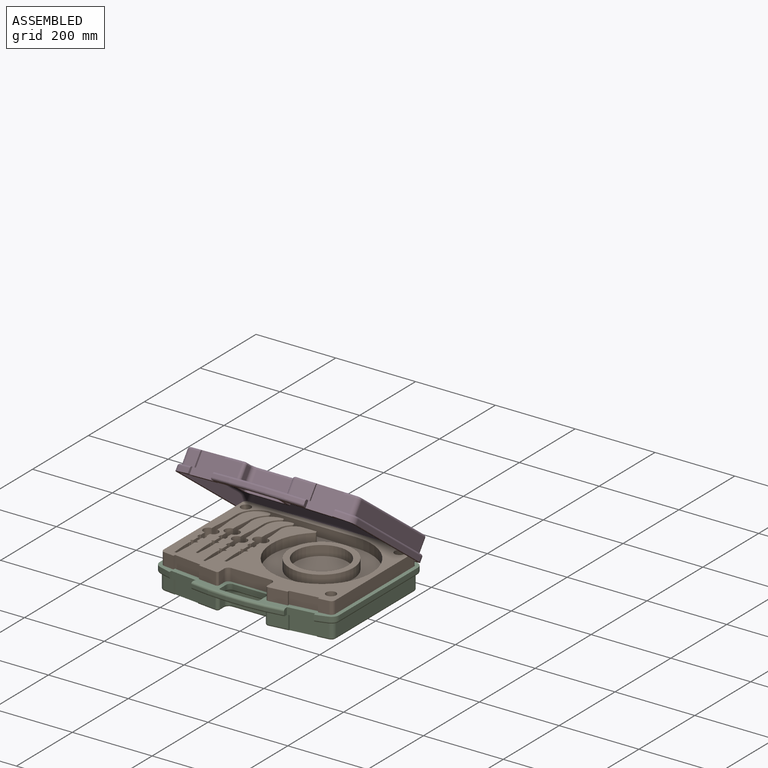
[diagram: assembled view]
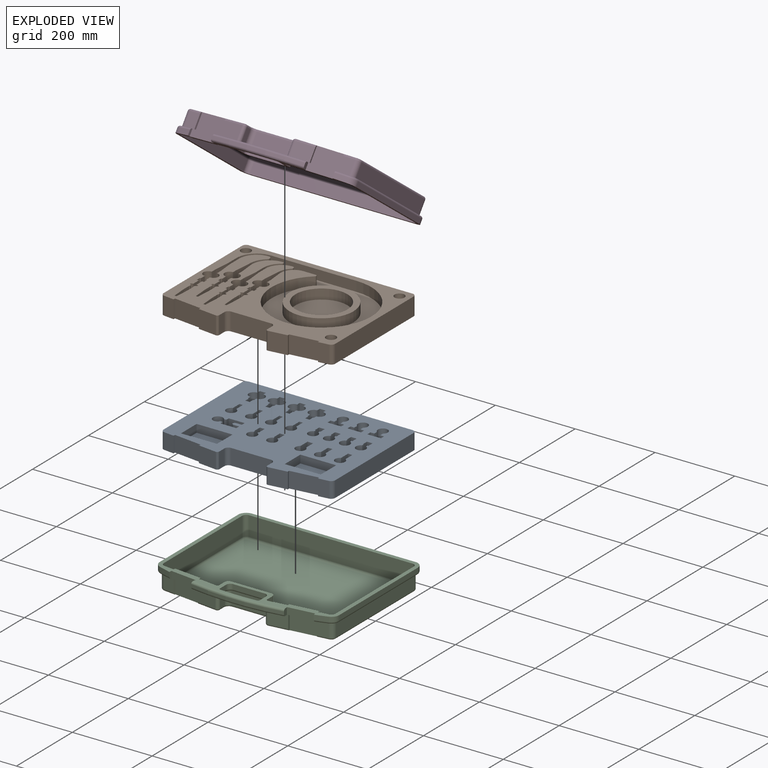
[diagram: exploded view]
GUIDED TOUR — MATED ASSEMBLY (Onshape document 5773a241e4b045660ab29a93, AutoMate assembly 5773a241e4b045660ab29a93_c4ba2a1c1ad19d531c4332f6_9940934c67d2c280661d5257_default)

This assembly has 4 components, labeled P0..P3 below (a component is one placed occurrence of a part; the same part can appear more than once), held together by 3 mates. A mate is a constraint between two components; its type names the relative motion it leaves free:
  REVOLUTE — leaves rotation about the listed axis free (a hinge),
  SLIDER — leaves translation along the listed axis free.
Axis/direction vectors are unit vectors and 'through' points are millimeter coordinates, both in the assembly's world frame.

MATES
  1. SLIDER "bottom plate": P0 <-> P2, axis (0.000, 0.000, -1.000) through (379.71, -196.88, 65.75) mm
  2. REVOLUTE "Revolute 1": P2 <-> P3, axis (-1.000, 0.000, 0.000) through (379.71, -35.58, 119.75) mm
  3. SLIDER "top plate": P1 <-> P2, axis (0.000, 0.000, -1.000) through (379.71, -196.88, 105.75) mm

ASSEMBLY ORDER
  1. P2 — the base component [order heuristic]
  2. P0 — core [order heuristic]
  3. P1 [order verified]
  4. P3 [order verified]
Order-tag legend:
  [order verified] — this step's position reverses a verified removal order: the component was checked to insert without passing through the ones already placed.
  [order heuristic] — the first 2 components form the assembly's core: parts whose collision-free extraction could not be verified, listed in mate-graph order.

Of the 4 components, 2 carry the full construction recipe — the FeatureScript program that regenerates the part's solid from scratch; the rest are supplied as boundary geometry only.
Each toured component is shown spotlighted twice — in the assembled view, then in the exploded view, where a leader line traces a displaced component back to its assembled socket (saturated green if recipe-attached, orange if geometry-only; every other component desaturated gray) — followed by its recipe or geometry summary and the mates that hold it.
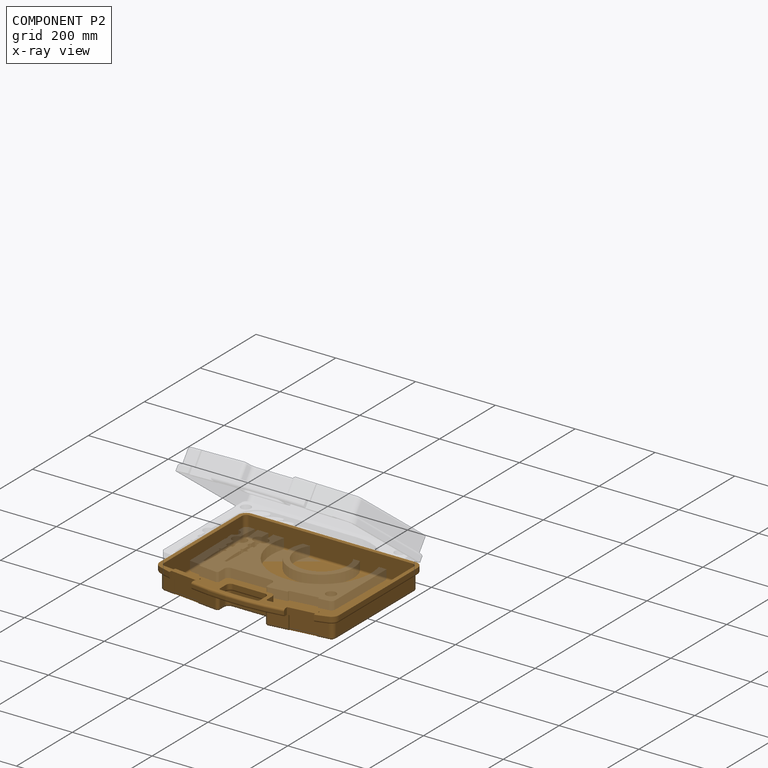
[diagram: component P2 — x-ray view]
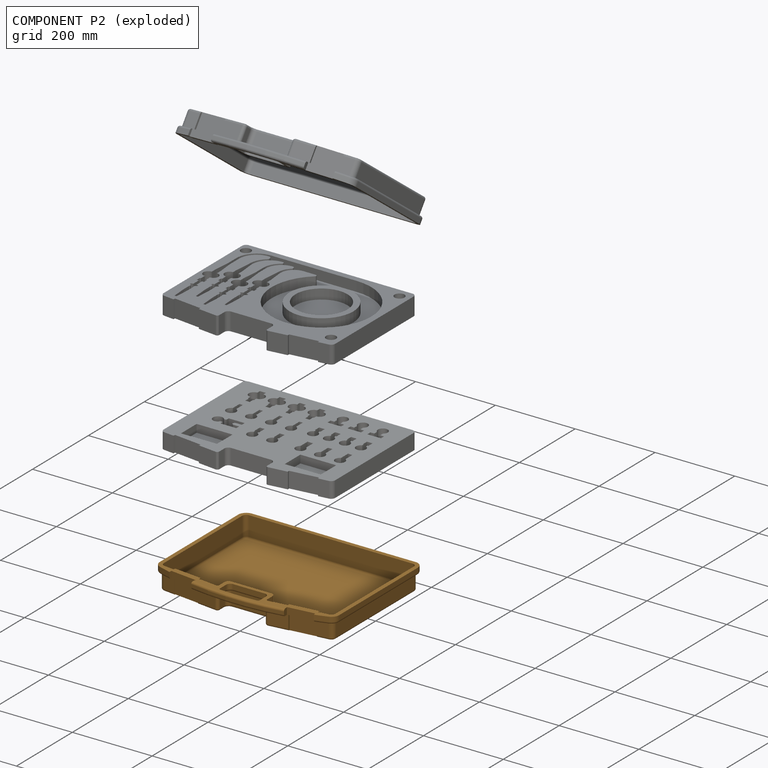
[diagram: component P2 — exploded]
COMPONENT P2 — geometry summary (no construction recipe available for this part):
  bounding box: 453.3 x 365.8 x 57.0 mm
  B-rep topology: 1 solid, 131 faces, 648 edges
  volume: 820835 mm^3 (9% of its bounding box)
  symmetry: mirror-symmetric across its x mid-plane
Held by: SLIDER mate "bottom plate" to P0; REVOLUTE mate "Revolute 1" to P3; SLIDER mate "top plate" to P1.
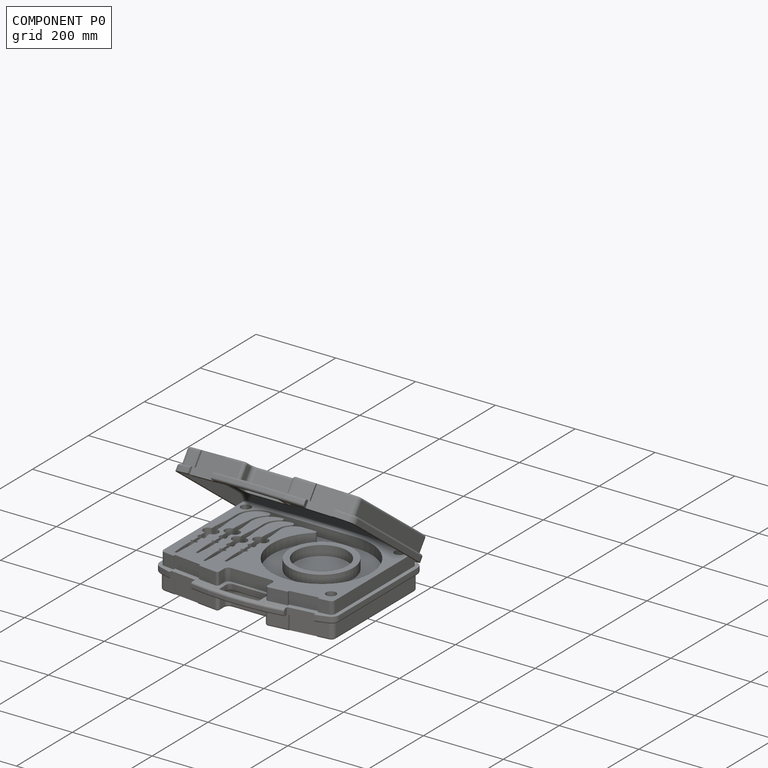
[diagram: component P0 — assembled]
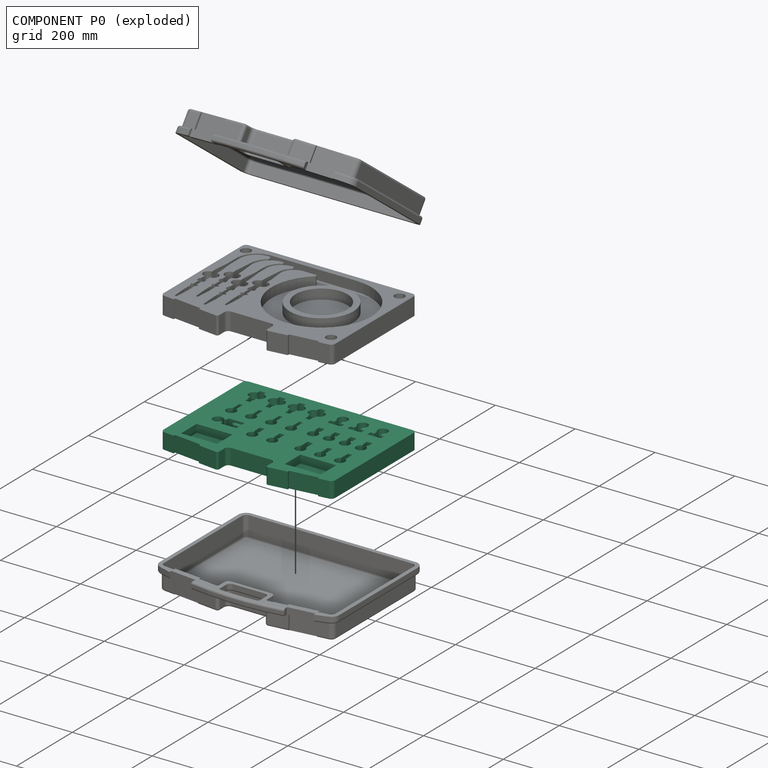
[diagram: component P0 — exploded]
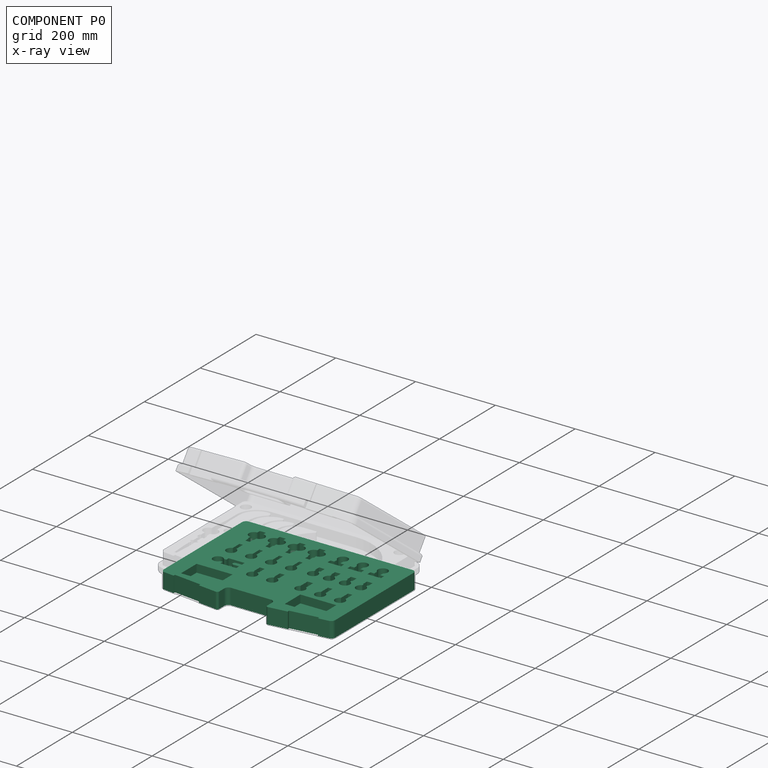
[diagram: component P0 — x-ray view]
COMPONENT P0 — recipe-attached (CADFS 00187195, mesh-verified: the recipe's output STEP matches this component's geometry to below the mesh-comparison resolution (tessellation chordal tolerance ~0.805 mm)).
Held by: SLIDER mate "bottom plate" to P2.
Construction recipe (FeatureScript — the CAD program that rebuilds this solid; sketch coordinates are in the units given by the * unit suffixes, e.g. mm):

FeatureScript 1540;
import(path : "onshape/std/geometry.fs", version : "1540.0");
import(path : "onshape/std/common.fs", version : "1540.0");
const mm = millimeter;
const VERTEX = EntityType.VERTEX;
const EDGE = EntityType.EDGE;
const FACE = EntityType.FACE;
const BODY = EntityType.BODY;
function v(x, y){return vector(x, y);}
function OD(order){return orderDisambiguation(order);}
function OSD(set){return originalSetDisambiguation(set);}
function TD(topology){return topologyDisambiguation(topology);}
function TDD(query){return trueDependencyDisambiguation(query);}
function sQuery(a, b, c) {return sketchEntityQuery(a, b, c);}

annotation { "Feature Type Name" : "Feature", "Feature Type Description" : "" }
export const myFeature = defineFeature(function(context is Context, id is Id, definition is map)
    precondition{}
    {
        {
            var Q0;
            Q0=qCreatedBy(makeId("Top.planeOp"),FACE);
            var sketch = newSketch(context, id + "F0", { "sketchPlane" : qUnion([Q0])});
            skLineSegment(sketch, "E0.bottom", {"start": v(10, 0) * mm, "end": v(420, 0) * mm});
            skLineSegment(sketch, "E1.top", {"start": v(165, 285) * mm, "end": v(265, 285) * mm});
            skLineSegment(sketch, "E1.left", {"start": v(155, 313.35) * mm, "end": v(155, 295) * mm});
            skLineSegment(sketch, "E1.right", {"start": v(275, 313.35) * mm, "end": v(275, 295) * mm});
            skLineSegment(sketch, "E2", {"start": v(0, 10) * mm, "end": v(0, 291.15) * mm});
            skLineSegment(sketch, "E3", {"start": v(430, 10) * mm, "end": v(430, 291.15) * mm});
            skLineSegment(sketch, "E4", {"start": v(33.9, 304.16) * mm, "end": v(34.51, 299.2) * mm});
            skLineSegment(sketch, "E5", {"start": v(34.51, 299.2) * mm, "end": v(104, 307.71) * mm});
            skLineSegment(sketch, "E6", {"start": v(104, 307.71) * mm, "end": v(103.39, 312.67) * mm});
            skLineSegment(sketch, "E7", {"start": v(326.61, 312.67) * mm, "end": v(326, 307.71) * mm});
            skLineSegment(sketch, "E8", {"start": v(326, 307.71) * mm, "end": v(395.49, 299.2) * mm});
            skLineSegment(sketch, "E9", {"start": v(395.49, 299.2) * mm, "end": v(396.1, 304.16) * mm});
            skLineSegment(sketch, "E10", {"start": v(396.1, 304.16) * mm, "end": v(421.22, 301.08) * mm});
            skLineSegment(sketch, "E11", {"start": v(326.61, 312.67) * mm, "end": v(280.6, 318.31) * mm});
            skLineSegment(sketch, "E12", {"start": v(103.39, 312.67) * mm, "end": v(149.4, 318.31) * mm});
            skLineSegment(sketch, "E13", {"start": v(8.78, 301.08) * mm, "end": v(33.9, 304.16) * mm});
            skPoint(sketch, "E14.visualSharp", {"position": v(155, 285) * mm});
            skArc(sketch, "E14.filletArc", {"start": v(155, 295) * mm, "mid": v(157.93, 287.93) * mm, "end": v(165, 285) * mm});
            skPoint(sketch, "E15.visualSharp", {"position": v(275, 285) * mm});
            skArc(sketch, "E15.filletArc", {"start": v(265, 285) * mm, "mid": v(272.07, 287.93) * mm, "end": v(275, 295) * mm});
            skPoint(sketch, "E16.visualSharp", {"position": v(430, 300) * mm});
            skArc(sketch, "E16.filletArc", {"start": v(430, 291.15) * mm, "mid": v(427.49, 297.78) * mm, "end": v(421.22, 301.08) * mm});
            skPoint(sketch, "E17.visualSharp", {"position": v(0, 300) * mm});
            skArc(sketch, "E17.filletArc", {"start": v(8.78, 301.08) * mm, "mid": v(2.51, 297.78) * mm, "end": v(0, 291.15) * mm});
            skPoint(sketch, "E18.visualSharp", {"position": v(0, 0) * mm});
            skArc(sketch, "E18.filletArc", {"start": v(0, 10) * mm, "mid": v(2.93, 2.93) * mm, "end": v(10, 0) * mm});
            skPoint(sketch, "E19.visualSharp", {"position": v(430, 0) * mm});
            skArc(sketch, "E19.filletArc", {"start": v(420, 0) * mm, "mid": v(427.07, 2.93) * mm, "end": v(430, 10) * mm});
            skPoint(sketch, "E20.visualSharp", {"position": v(155, 319) * mm});
            skArc(sketch, "E20.filletArc", {"start": v(155, 313.35) * mm, "mid": v(153.31, 317.1) * mm, "end": v(149.4, 318.31) * mm});
            skPoint(sketch, "E21.visualSharp", {"position": v(275, 319) * mm});
            skArc(sketch, "E21.filletArc", {"start": v(280.6, 318.31) * mm, "mid": v(276.69, 317.1) * mm, "end": v(275, 313.35) * mm});
            skLineSegment(sketch, "E22.bottom", {"start": v(40, 59) * mm, "end": v(49.5, 59) * mm});
            skLineSegment(sketch, "E22.top", {"start": v(40, 70) * mm, "end": v(74, 70) * mm});
            skLineSegment(sketch, "E22.left", {"start": v(40, 59) * mm, "end": v(40, 70) * mm});
            skLineSegment(sketch, "E22.right", {"start": v(74, 59) * mm, "end": v(74, 70) * mm});
            skLineSegment(sketch, "E23.left", {"start": v(49.5, 59) * mm, "end": v(49.5, 49) * mm});
            skLineSegment(sketch, "E23.right", {"start": v(64.5, 59) * mm, "end": v(64.5, 49) * mm});
            skLineSegment(sketch, "E24", {"start": v(57, 70) * mm, "end": v(57, 26.5) * mm, "construction": true});
            skLineSegment(sketch, "E25.trimOffspring", {"start": v(64.5, 59) * mm, "end": v(74, 59) * mm});
            skArc(sketch, "E26", {"start": v(49.5, 49) * mm, "mid": v(57, 26.5) * mm, "end": v(64.5, 49) * mm});
            skLineSegment(sketch, "E27.1.0.0", {"start": v(90, 59) * mm, "end": v(99.5, 59) * mm});
            skLineSegment(sketch, "E27.1.0.1", {"start": v(90, 70) * mm, "end": v(124, 70) * mm});
            skLineSegment(sketch, "E27.1.0.2", {"start": v(90, 59) * mm, "end": v(90, 70) * mm});
            skLineSegment(sketch, "E27.1.0.3", {"start": v(124, 59) * mm, "end": v(124, 70) * mm});
            skLineSegment(sketch, "E27.1.0.4", {"start": v(99.5, 59) * mm, "end": v(99.5, 49) * mm});
            skLineSegment(sketch, "E27.1.0.5", {"start": v(114.5, 59) * mm, "end": v(114.5, 49) * mm});
            skLineSegment(sketch, "E27.1.0.6", {"start": v(107, 70) * mm, "end": v(107, 26.5) * mm, "construction": true});
            skLineSegment(sketch, "E27.1.0.7", {"start": v(114.5, 59) * mm, "end": v(124, 59) * mm});
            skArc(sketch, "E27.1.0.8", {"start": v(99.5, 49) * mm, "mid": v(107, 26.5) * mm, "end": v(114.5, 49) * mm});
            skLineSegment(sketch, "E27.2.0.0", {"start": v(140, 59) * mm, "end": v(149.5, 59) * mm});
            skLineSegment(sketch, "E27.2.0.1", {"start": v(140, 70) * mm, "end": v(174, 70) * mm});
            skLineSegment(sketch, "E27.2.0.2", {"start": v(140, 59) * mm, "end": v(140, 70) * mm});
            skLineSegment(sketch, "E27.2.0.3", {"start": v(174, 59) * mm, "end": v(174, 70) * mm});
            skLineSegment(sketch, "E27.2.0.4", {"start": v(149.5, 59) * mm, "end": v(149.5, 49) * mm});
            skLineSegment(sketch, "E27.2.0.5", {"start": v(164.5, 59) * mm, "end": v(164.5, 49) * mm});
            skLineSegment(sketch, "E27.2.0.6", {"start": v(157, 70) * mm, "end": v(157, 26.5) * mm, "construction": true});
            skLineSegment(sketch, "E27.2.0.7", {"start": v(164.5, 59) * mm, "end": v(174, 59) * mm});
            skArc(sketch, "E27.2.0.8", {"start": v(149.5, 49) * mm, "mid": v(157, 26.5) * mm, "end": v(164.5, 49) * mm});
            skLineSegment(sketch, "E27.direction1", {"start": v(57, 26.5) * mm, "end": v(107, 26.5) * mm, "construction": true});
            skLineSegment(sketch, "E28", {"start": v(351.5, 170) * mm, "end": v(311.5, 170) * mm});
            skLineSegment(sketch, "E29", {"start": v(311.5, 170) * mm, "end": v(311.5, 180) * mm});
            skLineSegment(sketch, "E30", {"start": v(311.5, 180) * mm, "end": v(325.8, 180) * mm});
            skLineSegment(sketch, "E31", {"start": v(325.8, 190) * mm, "end": v(311.5, 190) * mm});
            skLineSegment(sketch, "E32", {"start": v(311.5, 190) * mm, "end": v(311.5, 200) * mm});
            skLineSegment(sketch, "E33", {"start": v(311.5, 200) * mm, "end": v(351.5, 200) * mm});
            skLineSegment(sketch, "E34", {"start": v(351.5, 200) * mm, "end": v(351.5, 191.5) * mm});
            skLineSegment(sketch, "E35", {"start": v(351.5, 191.5) * mm, "end": v(357.5, 191.5) * mm});
            skLineSegment(sketch, "E36", {"start": v(357.5, 178.5) * mm, "end": v(351.5, 178.5) * mm});
            skLineSegment(sketch, "E37", {"start": v(351.5, 178.5) * mm, "end": v(351.5, 170) * mm});
            skLineSegment(sketch, "E38", {"start": v(380.68, 185) * mm, "end": v(330.8, 185) * mm, "construction": true});
            skArc(sketch, "E39", {"start": v(325.8, 180) * mm, "mid": v(330.8, 185) * mm, "end": v(325.8, 190) * mm});
            skArc(sketch, "E40", {"start": v(357.5, 178.5) * mm, "mid": v(380.68, 185) * mm, "end": v(357.5, 191.5) * mm});
            skLineSegment(sketch, "E41.bottom", {"start": v(223.5, 100) * mm, "end": v(223.5, 124) * mm});
            skLineSegment(sketch, "E41.top", {"start": v(215, 100) * mm, "end": v(215, 124) * mm});
            skLineSegment(sketch, "E41.left", {"start": v(223.5, 100) * mm, "end": v(215, 100) * mm});
            skArc(sketch, "E42", {"start": v(223.5, 124) * mm, "mid": v(219.25, 148.26) * mm, "end": v(215, 124) * mm});
            skLineSegment(sketch, "E43.1.0.0", {"start": v(273.5, 100) * mm, "end": v(265, 100) * mm});
            skArc(sketch, "E43.1.0.1", {"start": v(273.5, 124) * mm, "mid": v(269.25, 148.26) * mm, "end": v(265, 124) * mm});
            skLineSegment(sketch, "E43.1.0.2", {"start": v(265, 100) * mm, "end": v(265, 124) * mm});
            skLineSegment(sketch, "E43.1.0.3", {"start": v(273.5, 100) * mm, "end": v(273.5, 124) * mm});
            skLineSegment(sketch, "E43.2.0.0", {"start": v(323.5, 100) * mm, "end": v(315, 100) * mm});
            skArc(sketch, "E43.2.0.1", {"start": v(323.5, 124) * mm, "mid": v(319.25, 148.26) * mm, "end": v(315, 124) * mm});
            skLineSegment(sketch, "E43.2.0.2", {"start": v(315, 100) * mm, "end": v(315, 124) * mm});
            skLineSegment(sketch, "E43.2.0.3", {"start": v(323.5, 100) * mm, "end": v(323.5, 124) * mm});
            skLineSegment(sketch, "E43.3.0.0", {"start": v(373.5, 100) * mm, "end": v(365, 100) * mm});
            skArc(sketch, "E43.3.0.1", {"start": v(373.5, 124) * mm, "mid": v(369.25, 148.26) * mm, "end": v(365, 124) * mm});
            skLineSegment(sketch, "E43.3.0.2", {"start": v(365, 100) * mm, "end": v(365, 124) * mm});
            skLineSegment(sketch, "E43.3.0.3", {"start": v(373.5, 100) * mm, "end": v(373.5, 124) * mm});
            skLineSegment(sketch, "E43.direction1", {"start": v(215, 100) * mm, "end": v(265, 100) * mm, "construction": true});
            skLineSegment(sketch, "E44.bottom", {"start": v(40, 100) * mm, "end": v(54, 100) * mm});
            skLineSegment(sketch, "E44.top", {"start": v(40, 115) * mm, "end": v(42.25, 115) * mm});
            skLineSegment(sketch, "E44.left", {"start": v(40, 100) * mm, "end": v(40, 115) * mm});
            skLineSegment(sketch, "E44.right", {"start": v(54, 100) * mm, "end": v(54, 115) * mm});
            skLineSegment(sketch, "E45.left", {"start": v(42.25, 115) * mm, "end": v(42.25, 120) * mm});
            skLineSegment(sketch, "E45.right", {"start": v(51.75, 115) * mm, "end": v(51.75, 120) * mm});
            skLineSegment(sketch, "E46", {"start": v(47, 144.06) * mm, "end": v(47, 100) * mm, "construction": true});
            skArc(sketch, "E47", {"start": v(51.75, 120) * mm, "mid": v(47, 144.06) * mm, "end": v(42.25, 120) * mm});
            skLineSegment(sketch, "E48.trimOffspring", {"start": v(51.75, 115) * mm, "end": v(54, 115) * mm});
            skLineSegment(sketch, "E49.1.0.0", {"start": v(80, 100) * mm, "end": v(94, 100) * mm});
            skLineSegment(sketch, "E49.1.0.1", {"start": v(80, 115) * mm, "end": v(82.25, 115) * mm});
            skLineSegment(sketch, "E49.1.0.2", {"start": v(80, 100) * mm, "end": v(80, 115) * mm});
            skLineSegment(sketch, "E49.1.0.3", {"start": v(94, 100) * mm, "end": v(94, 115) * mm});
            skLineSegment(sketch, "E49.1.0.4", {"start": v(82.25, 115) * mm, "end": v(82.25, 120) * mm});
            skLineSegment(sketch, "E49.1.0.5", {"start": v(91.75, 115) * mm, "end": v(91.75, 120) * mm});
            skLineSegment(sketch, "E49.1.0.6", {"start": v(87, 144.06) * mm, "end": v(87, 100) * mm, "construction": true});
            skArc(sketch, "E49.1.0.7", {"start": v(91.75, 120) * mm, "mid": v(87, 144.06) * mm, "end": v(82.25, 120) * mm});
            skLineSegment(sketch, "E49.1.0.8", {"start": v(91.75, 115) * mm, "end": v(94, 115) * mm});
            skLineSegment(sketch, "E49.direction1", {"start": v(40, 100) * mm, "end": v(80, 100) * mm, "construction": true});
            skLineSegment(sketch, "E50.0.2.0", {"start": v(120, 100) * mm, "end": v(134, 100) * mm});
            skLineSegment(sketch, "E50.3.2.0", {"start": v(120, 115) * mm, "end": v(122.25, 115) * mm});
            skLineSegment(sketch, "E50.6.2.0", {"start": v(120, 100) * mm, "end": v(120, 115) * mm});
            skLineSegment(sketch, "E50.9.2.0", {"start": v(134, 100) * mm, "end": v(134, 115) * mm});
            skLineSegment(sketch, "E50.12.2.0", {"start": v(122.25, 115) * mm, "end": v(122.25, 120) * mm});
            skLineSegment(sketch, "E50.15.2.0", {"start": v(131.75, 115) * mm, "end": v(131.75, 120) * mm});
            skLineSegment(sketch, "E50.18.2.0", {"start": v(127, 144.06) * mm, "end": v(127, 100) * mm, "construction": true});
            skArc(sketch, "E50.21.2.0", {"start": v(131.75, 120) * mm, "mid": v(127, 144.06) * mm, "end": v(122.25, 120) * mm});
            skLineSegment(sketch, "E50.25.2.0", {"start": v(131.75, 115) * mm, "end": v(134, 115) * mm});
            skLineSegment(sketch, "E50.0.3.0", {"start": v(160, 100) * mm, "end": v(174, 100) * mm});
            skLineSegment(sketch, "E50.3.3.0", {"start": v(160, 115) * mm, "end": v(162.25, 115) * mm});
            skLineSegment(sketch, "E50.6.3.0", {"start": v(160, 100) * mm, "end": v(160, 115) * mm});
            skLineSegment(sketch, "E50.9.3.0", {"start": v(174, 100) * mm, "end": v(174, 115) * mm});
            skLineSegment(sketch, "E50.12.3.0", {"start": v(162.25, 115) * mm, "end": v(162.25, 120) * mm});
            skLineSegment(sketch, "E50.15.3.0", {"start": v(171.75, 115) * mm, "end": v(171.75, 120) * mm});
            skLineSegment(sketch, "E50.18.3.0", {"start": v(167, 144.06) * mm, "end": v(167, 100) * mm, "construction": true});
            skArc(sketch, "E50.21.3.0", {"start": v(171.75, 120) * mm, "mid": v(167, 144.06) * mm, "end": v(162.25, 120) * mm});
            skLineSegment(sketch, "E50.25.3.0", {"start": v(171.75, 115) * mm, "end": v(174, 115) * mm});
            skLineSegment(sketch, "E51.bottom", {"start": v(41.5, 170) * mm, "end": v(52.5, 170) * mm});
            skLineSegment(sketch, "E51.left", {"start": v(41.5, 170) * mm, "end": v(41.5, 195) * mm});
            skLineSegment(sketch, "E51.right", {"start": v(52.5, 170) * mm, "end": v(52.5, 195) * mm});
            skArc(sketch, "E52", {"start": v(52.5, 195) * mm, "mid": v(47, 218.72) * mm, "end": v(41.5, 195) * mm});
            skLineSegment(sketch, "E53", {"start": v(47, 218.72) * mm, "end": v(47, 170) * mm, "construction": true});
            skLineSegment(sketch, "E54.1.0.0", {"start": v(91.5, 170) * mm, "end": v(102.5, 170) * mm});
            skLineSegment(sketch, "E54.1.0.1", {"start": v(91.5, 170) * mm, "end": v(91.5, 195) * mm});
            skLineSegment(sketch, "E54.1.0.2", {"start": v(102.5, 170) * mm, "end": v(102.5, 195) * mm});
            skArc(sketch, "E54.1.0.3", {"start": v(102.5, 195) * mm, "mid": v(97, 218.72) * mm, "end": v(91.5, 195) * mm});
            skLineSegment(sketch, "E54.1.0.4", {"start": v(97, 218.72) * mm, "end": v(97, 170) * mm, "construction": true});
            skLineSegment(sketch, "E54.direction1", {"start": v(41.5, 170) * mm, "end": v(91.5, 170) * mm, "construction": true});
            skLineSegment(sketch, "E55.bottom", {"start": v(140, 170) * mm, "end": v(154, 170) * mm});
            skLineSegment(sketch, "E55.left", {"start": v(140, 170) * mm, "end": v(140, 195) * mm});
            skLineSegment(sketch, "E55.right", {"start": v(154, 170) * mm, "end": v(154, 195) * mm});
            skLineSegment(sketch, "E56", {"start": v(147, 217.86) * mm, "end": v(147, 170) * mm, "construction": true});
            skArc(sketch, "E57", {"start": v(154, 195) * mm, "mid": v(147, 217.86) * mm, "end": v(140, 195) * mm});
            skLineSegment(sketch, "E58.bottom", {"start": v(211.5, 170) * mm, "end": v(223.5, 170) * mm});
            skLineSegment(sketch, "E58.top", {"start": v(211.5, 190) * mm, "end": v(213, 190) * mm});
            skLineSegment(sketch, "E58.left", {"start": v(211.5, 170) * mm, "end": v(211.5, 190) * mm});
            skLineSegment(sketch, "E58.right", {"start": v(223.5, 170) * mm, "end": v(223.5, 190) * mm});
            skLineSegment(sketch, "E59.left", {"start": v(213, 190) * mm, "end": v(213, 194) * mm});
            skLineSegment(sketch, "E59.right", {"start": v(222, 190) * mm, "end": v(222, 194) * mm});
            skLineSegment(sketch, "E60", {"start": v(217.5, 218.16) * mm, "end": v(217.5, 170) * mm, "construction": true});
            skArc(sketch, "E61", {"start": v(222, 194) * mm, "mid": v(217.5, 218.16) * mm, "end": v(213, 194) * mm});
            skLineSegment(sketch, "E62.trimOffspring", {"start": v(222, 190) * mm, "end": v(223.5, 190) * mm});
            skLineSegment(sketch, "E63.1.0.0", {"start": v(261.5, 170) * mm, "end": v(273.5, 170) * mm});
            skLineSegment(sketch, "E63.1.0.1", {"start": v(261.5, 190) * mm, "end": v(263, 190) * mm});
            skLineSegment(sketch, "E63.1.0.2", {"start": v(261.5, 170) * mm, "end": v(261.5, 190) * mm});
            skLineSegment(sketch, "E63.1.0.3", {"start": v(273.5, 170) * mm, "end": v(273.5, 190) * mm});
            skLineSegment(sketch, "E63.1.0.4", {"start": v(263, 190) * mm, "end": v(263, 194) * mm});
            skLineSegment(sketch, "E63.1.0.5", {"start": v(272, 190) * mm, "end": v(272, 194) * mm});
            skLineSegment(sketch, "E63.1.0.6", {"start": v(267.5, 218.16) * mm, "end": v(267.5, 170) * mm, "construction": true});
            skArc(sketch, "E63.1.0.7", {"start": v(272, 194) * mm, "mid": v(267.5, 218.16) * mm, "end": v(263, 194) * mm});
            skLineSegment(sketch, "E63.1.0.8", {"start": v(272, 190) * mm, "end": v(273.5, 190) * mm});
            skLineSegment(sketch, "E63.direction1", {"start": v(211.5, 170) * mm, "end": v(261.5, 170) * mm, "construction": true});
            skLineSegment(sketch, "E64.bottom", {"start": v(210, 25) * mm, "end": v(210, 34) * mm});
            skLineSegment(sketch, "E64.top", {"start": v(225, 25) * mm, "end": v(225, 34) * mm});
            skLineSegment(sketch, "E64.left", {"start": v(210, 25) * mm, "end": v(225, 25) * mm});
            skLineSegment(sketch, "E64.right", {"start": v(210, 68) * mm, "end": v(212, 68) * mm});
            skLineSegment(sketch, "E65", {"start": v(217.5, 25) * mm, "end": v(217.5, 80) * mm, "construction": true});
            skLineSegment(sketch, "E66.bottom", {"start": v(212, 68) * mm, "end": v(212, 80) * mm});
            skLineSegment(sketch, "E66.top", {"start": v(223, 68) * mm, "end": v(223, 80) * mm});
            skLineSegment(sketch, "E66.right", {"start": v(212, 80) * mm, "end": v(223, 80) * mm});
            skLineSegment(sketch, "E67.trimOffspring", {"start": v(223, 68) * mm, "end": v(225, 68) * mm});
            skArc(sketch, "E68", {"start": v(210, 59) * mm, "mid": v(197.5, 46.5) * mm, "end": v(210, 34) * mm});
            skArc(sketch, "E69", {"start": v(225, 34) * mm, "mid": v(237.5, 46.5) * mm, "end": v(225, 59) * mm});
            skLineSegment(sketch, "E70.trimOffspring", {"start": v(225, 59) * mm, "end": v(225, 68) * mm});
            skLineSegment(sketch, "E71.trimOffspring", {"start": v(210, 59) * mm, "end": v(210, 68) * mm});
            skLineSegment(sketch, "E72.1.0.0", {"start": v(275, 25) * mm, "end": v(275, 34) * mm});
            skArc(sketch, "E72.1.0.1", {"start": v(260, 59) * mm, "mid": v(247.5, 46.5) * mm, "end": v(260, 34) * mm});
            skLineSegment(sketch, "E72.1.0.2", {"start": v(267.5, 25) * mm, "end": v(267.5, 80) * mm, "construction": true});
            skLineSegment(sketch, "E72.1.0.3", {"start": v(260, 25) * mm, "end": v(275, 25) * mm});
            skLineSegment(sketch, "E72.1.0.4", {"start": v(260, 25) * mm, "end": v(260, 34) * mm});
            skLineSegment(sketch, "E72.1.0.5", {"start": v(273, 68) * mm, "end": v(273, 80) * mm});
            skArc(sketch, "E72.1.0.6", {"start": v(275, 34) * mm, "mid": v(287.5, 46.5) * mm, "end": v(275, 59) * mm});
            skLineSegment(sketch, "E72.1.0.7", {"start": v(260, 59) * mm, "end": v(260, 68) * mm});
            skLineSegment(sketch, "E72.1.0.8", {"start": v(262, 68) * mm, "end": v(262, 80) * mm});
            skLineSegment(sketch, "E72.1.0.9", {"start": v(275, 59) * mm, "end": v(275, 68) * mm});
            skLineSegment(sketch, "E72.1.0.10", {"start": v(262, 80) * mm, "end": v(273, 80) * mm});
            skLineSegment(sketch, "E72.1.0.11", {"start": v(260, 68) * mm, "end": v(262, 68) * mm});
            skLineSegment(sketch, "E72.1.0.12", {"start": v(273, 68) * mm, "end": v(275, 68) * mm});
            skLineSegment(sketch, "E72.2.0.0", {"start": v(325, 25) * mm, "end": v(325, 34) * mm});
            skArc(sketch, "E72.2.0.1", {"start": v(310, 59) * mm, "mid": v(297.5, 46.5) * mm, "end": v(310, 34) * mm});
            skLineSegment(sketch, "E72.2.0.2", {"start": v(317.5, 25) * mm, "end": v(317.5, 80) * mm, "construction": true});
            skLineSegment(sketch, "E72.2.0.3", {"start": v(310, 25) * mm, "end": v(325, 25) * mm});
            skLineSegment(sketch, "E72.2.0.4", {"start": v(310, 25) * mm, "end": v(310, 34) * mm});
            skLineSegment(sketch, "E72.2.0.5", {"start": v(323, 68) * mm, "end": v(323, 80) * mm});
            skArc(sketch, "E72.2.0.6", {"start": v(325, 34) * mm, "mid": v(337.5, 46.5) * mm, "end": v(325, 59) * mm});
            skLineSegment(sketch, "E72.2.0.7", {"start": v(310, 59) * mm, "end": v(310, 68) * mm});
            skLineSegment(sketch, "E72.2.0.8", {"start": v(312, 68) * mm, "end": v(312, 80) * mm});
            skLineSegment(sketch, "E72.2.0.9", {"start": v(325, 59) * mm, "end": v(325, 68) * mm});
            skLineSegment(sketch, "E72.2.0.10", {"start": v(312, 80) * mm, "end": v(323, 80) * mm});
            skLineSegment(sketch, "E72.2.0.11", {"start": v(310, 68) * mm, "end": v(312, 68) * mm});
            skLineSegment(sketch, "E72.2.0.12", {"start": v(323, 68) * mm, "end": v(325, 68) * mm});
            skLineSegment(sketch, "E72.3.0.0", {"start": v(375, 25) * mm, "end": v(375, 34) * mm});
            skArc(sketch, "E72.3.0.1", {"start": v(360, 59) * mm, "mid": v(347.5, 46.5) * mm, "end": v(360, 34) * mm});
            skLineSegment(sketch, "E72.3.0.2", {"start": v(367.5, 25) * mm, "end": v(367.5, 80) * mm, "construction": true});
            skLineSegment(sketch, "E72.3.0.3", {"start": v(360, 25) * mm, "end": v(375, 25) * mm});
            skLineSegment(sketch, "E72.3.0.4", {"start": v(360, 25) * mm, "end": v(360, 34) * mm});
            skLineSegment(sketch, "E72.3.0.5", {"start": v(373, 68) * mm, "end": v(373, 80) * mm});
            skArc(sketch, "E72.3.0.6", {"start": v(375, 34) * mm, "mid": v(387.5, 46.5) * mm, "end": v(375, 59) * mm});
            skLineSegment(sketch, "E72.3.0.7", {"start": v(360, 59) * mm, "end": v(360, 68) * mm});
            skLineSegment(sketch, "E72.3.0.8", {"start": v(362, 68) * mm, "end": v(362, 80) * mm});
            skLineSegment(sketch, "E72.3.0.9", {"start": v(375, 59) * mm, "end": v(375, 68) * mm});
            skLineSegment(sketch, "E72.3.0.10", {"start": v(362, 80) * mm, "end": v(373, 80) * mm});
            skLineSegment(sketch, "E72.3.0.11", {"start": v(360, 68) * mm, "end": v(362, 68) * mm});
            skLineSegment(sketch, "E72.3.0.12", {"start": v(373, 68) * mm, "end": v(375, 68) * mm});
            skLineSegment(sketch, "E72.direction1", {"start": v(210, 25) * mm, "end": v(260, 25) * mm, "construction": true});
            skLineSegment(sketch, "E73.bottom", {"start": v(40, 230) * mm, "end": v(130, 230) * mm});
            skLineSegment(sketch, "E73.top", {"start": v(40, 286) * mm, "end": v(130, 286) * mm});
            skLineSegment(sketch, "E73.left", {"start": v(40, 230) * mm, "end": v(40, 286) * mm});
            skLineSegment(sketch, "E73.right", {"start": v(130, 230) * mm, "end": v(130, 286) * mm});
            skLineSegment(sketch, "E74.1.0.0", {"start": v(300, 230) * mm, "end": v(390, 230) * mm});
            skLineSegment(sketch, "E74.1.0.1", {"start": v(390, 230) * mm, "end": v(390, 286) * mm});
            skLineSegment(sketch, "E74.1.0.2", {"start": v(300, 286) * mm, "end": v(390, 286) * mm});
            skLineSegment(sketch, "E74.1.0.3", {"start": v(300, 230) * mm, "end": v(300, 286) * mm});
            skLineSegment(sketch, "E74.direction1", {"start": v(40, 230) * mm, "end": v(300, 230) * mm, "construction": true});
            skSolve(sketch);
        }
        {
            var Q0;
            Q0 = qSketchRegion(id + "F0", true);
            extrude(context, id + "F1", {"entities" : qUnion([Q0]), "depth" : 20 * mm});
        }
        {
            var Q0;
            Q0=makeQuery(id+"F0.imprint","IMPRINT",FACE,{"disambiguationData":[TD([[makeQuery(id+"F0.imprint","IMPRINT",EDGE,{"derivedFrom":sQuery(id+"F0.wireOp",EDGE,"E0.bottom")}),1.0]])]});
            var Q1;
            Q1=makeQuery(id+"F0.imprint","IMPRINT",FACE,{"disambiguationData":[TD([[makeQuery(id+"F0.imprint","IMPRINT",EDGE,{"derivedFrom":sQuery(id+"F0.wireOp",EDGE,"E73.bottom")}),1.0]])]});
            var Q2;
            Q2=makeQuery(id+"F0.imprint","IMPRINT",FACE,{"disambiguationData":[TD([[makeQuery(id+"F0.imprint","IMPRINT",EDGE,{"derivedFrom":sQuery(id+"F0.wireOp",EDGE,"E74.1.0.0")}),1.0]])]});
            var Q3;
            Q3=makeQuery(id+"F0.imprint","IMPRINT",FACE,{"disambiguationData":[TD([[makeQuery(id+"F0.imprint","IMPRINT",EDGE,{"derivedFrom":sQuery(id+"F0.wireOp",EDGE,"E28")}),-1.0]])]});
            var Q4;
            Q4=makeQuery(id+"F0.imprint","IMPRINT",FACE,{"disambiguationData":[TD([[makeQuery(id+"F0.imprint","IMPRINT",EDGE,{"derivedFrom":sQuery(id+"F0.wireOp",EDGE,"E63.1.0.0")}),1.0]])]});
            var Q5;
            Q5=makeQuery(id+"F0.imprint","IMPRINT",FACE,{"disambiguationData":[TD([[makeQuery(id+"F0.imprint","IMPRINT",EDGE,{"derivedFrom":sQuery(id+"F0.wireOp",EDGE,"E58.bottom")}),1.0]])]});
            var Q6;
            Q6=makeQuery(id+"F0.imprint","IMPRINT",FACE,{"disambiguationData":[TD([[makeQuery(id+"F0.imprint","IMPRINT",EDGE,{"derivedFrom":sQuery(id+"F0.wireOp",EDGE,"E55.bottom")}),1.0]])]});
            var Q7;
            Q7=makeQuery(id+"F0.imprint","IMPRINT",FACE,{"disambiguationData":[TD([[makeQuery(id+"F0.imprint","IMPRINT",EDGE,{"derivedFrom":sQuery(id+"F0.wireOp",EDGE,"E54.1.0.0")}),1.0]])]});
            var Q8;
            Q8=makeQuery(id+"F0.imprint","IMPRINT",FACE,{"disambiguationData":[TD([[makeQuery(id+"F0.imprint","IMPRINT",EDGE,{"derivedFrom":sQuery(id+"F0.wireOp",EDGE,"E51.bottom")}),1.0]])]});
            var Q9;
            Q9=makeQuery(id+"F0.imprint","IMPRINT",FACE,{"disambiguationData":[TD([[makeQuery(id+"F0.imprint","IMPRINT",EDGE,{"derivedFrom":sQuery(id+"F0.wireOp",EDGE,"E44.bottom")}),1.0]])]});
            var Q10;
            Q10=makeQuery(id+"F0.imprint","IMPRINT",FACE,{"disambiguationData":[TD([[makeQuery(id+"F0.imprint","IMPRINT",EDGE,{"derivedFrom":sQuery(id+"F0.wireOp",EDGE,"E49.1.0.0")}),1.0]])]});
            var Q11;
            Q11=makeQuery(id+"F0.imprint","IMPRINT",FACE,{"disambiguationData":[TD([[makeQuery(id+"F0.imprint","IMPRINT",EDGE,{"derivedFrom":sQuery(id+"F0.wireOp",EDGE,"E50.0.2.0")}),1.0]])]});
            var Q12;
            Q12=makeQuery(id+"F0.imprint","IMPRINT",FACE,{"disambiguationData":[TD([[makeQuery(id+"F0.imprint","IMPRINT",EDGE,{"derivedFrom":sQuery(id+"F0.wireOp",EDGE,"E50.0.3.0")}),1.0]])]});
            var Q13;
            Q13=makeQuery(id+"F0.imprint","IMPRINT",FACE,{"disambiguationData":[TD([[makeQuery(id+"F0.imprint","IMPRINT",EDGE,{"derivedFrom":sQuery(id+"F0.wireOp",EDGE,"E41.bottom")}),1.0]])]});
            var Q14;
            Q14=makeQuery(id+"F0.imprint","IMPRINT",FACE,{"disambiguationData":[TD([[makeQuery(id+"F0.imprint","IMPRINT",EDGE,{"derivedFrom":sQuery(id+"F0.wireOp",EDGE,"E43.1.0.0")}),-1.0]])]});
            var Q15;
            Q15=makeQuery(id+"F0.imprint","IMPRINT",FACE,{"disambiguationData":[TD([[makeQuery(id+"F0.imprint","IMPRINT",EDGE,{"derivedFrom":sQuery(id+"F0.wireOp",EDGE,"E43.2.0.0")}),-1.0]])]});
            var Q16;
            Q16=makeQuery(id+"F0.imprint","IMPRINT",FACE,{"disambiguationData":[TD([[makeQuery(id+"F0.imprint","IMPRINT",EDGE,{"derivedFrom":sQuery(id+"F0.wireOp",EDGE,"E43.3.0.0")}),-1.0]])]});
            var Q17;
            Q17=makeQuery(id+"F0.imprint","IMPRINT",FACE,{"disambiguationData":[TD([[makeQuery(id+"F0.imprint","IMPRINT",EDGE,{"derivedFrom":sQuery(id+"F0.wireOp",EDGE,"E72.3.0.0")}),1.0]])]});
            var Q18;
            Q18=makeQuery(id+"F0.imprint","IMPRINT",FACE,{"disambiguationData":[TD([[makeQuery(id+"F0.imprint","IMPRINT",EDGE,{"derivedFrom":sQuery(id+"F0.wireOp",EDGE,"E72.2.0.0")}),1.0]])]});
            var Q19;
            Q19=makeQuery(id+"F0.imprint","IMPRINT",FACE,{"disambiguationData":[TD([[makeQuery(id+"F0.imprint","IMPRINT",EDGE,{"derivedFrom":sQuery(id+"F0.wireOp",EDGE,"E72.1.0.0")}),1.0]])]});
            var Q20;
            Q20=makeQuery(id+"F0.imprint","IMPRINT",FACE,{"disambiguationData":[TD([[makeQuery(id+"F0.imprint","IMPRINT",EDGE,{"derivedFrom":sQuery(id+"F0.wireOp",EDGE,"E64.bottom")}),-1.0]])]});
            var Q21;
            Q21=makeQuery(id+"F0.imprint","IMPRINT",FACE,{"disambiguationData":[TD([[makeQuery(id+"F0.imprint","IMPRINT",EDGE,{"derivedFrom":sQuery(id+"F0.wireOp",EDGE,"E27.2.0.0")}),1.0]])]});
            var Q22;
            Q22=makeQuery(id+"F0.imprint","IMPRINT",FACE,{"disambiguationData":[TD([[makeQuery(id+"F0.imprint","IMPRINT",EDGE,{"derivedFrom":sQuery(id+"F0.wireOp",EDGE,"E27.1.0.0")}),1.0]])]});
            var Q23;
            Q23=makeQuery(id+"F0.imprint","IMPRINT",FACE,{"disambiguationData":[TD([[makeQuery(id+"F0.imprint","IMPRINT",EDGE,{"derivedFrom":sQuery(id+"F0.wireOp",EDGE,"E22.bottom")}),1.0]])]});
            var Q24;
            Q24=makeQuery(id+"F0.imprint","IMPRINT",FACE,{"disambiguationData":[TD([[makeQuery(id+"F0.imprint","IMPRINT",EDGE,{"derivedFrom":sQuery(id+"F0.wireOp",EDGE,"45c8c606-81b5-4f72-ab21-82beb55337fc")}),1.0]])]});
            extrude(context, id + "F2", {"entities" : qUnion([Q0, Q1, Q2, Q3, Q4, Q5, Q6, Q7, Q8, Q9, Q10, Q11, Q12, Q13, Q14, Q15, Q16, Q17, Q18, Q19, Q20, Q21, Q22, Q23, Q24]), "operationType" : NewBodyOperationType.ADD, "oppositeDirection" : true, "depth" : 20 * mm});
        }
    });
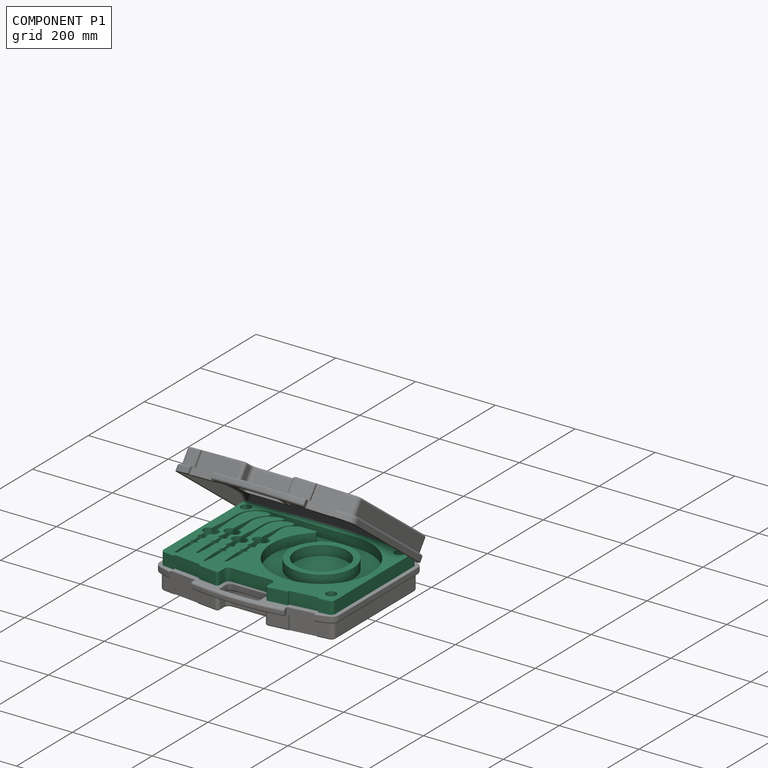
[diagram: component P1 — assembled]
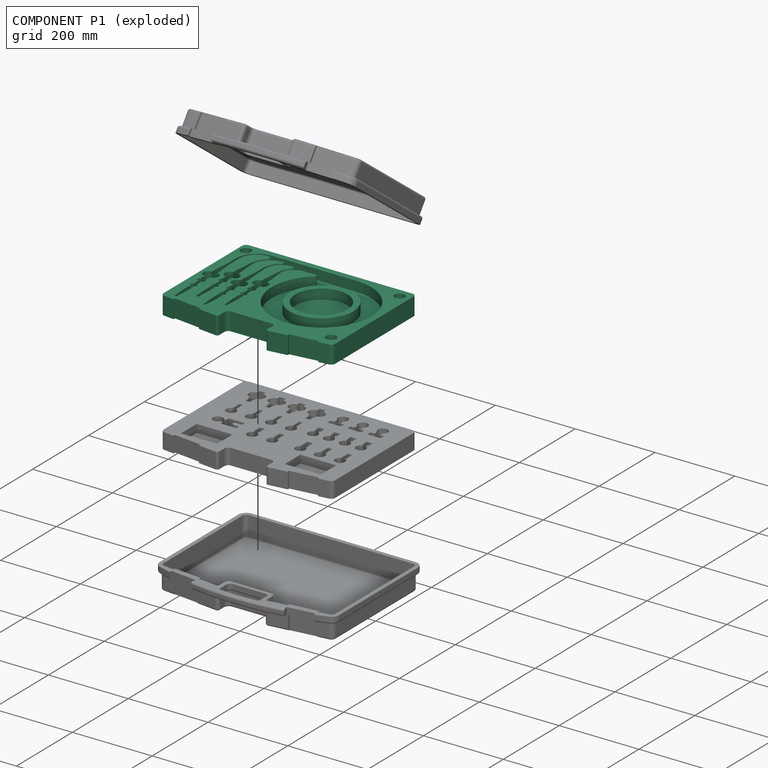
[diagram: component P1 — exploded]
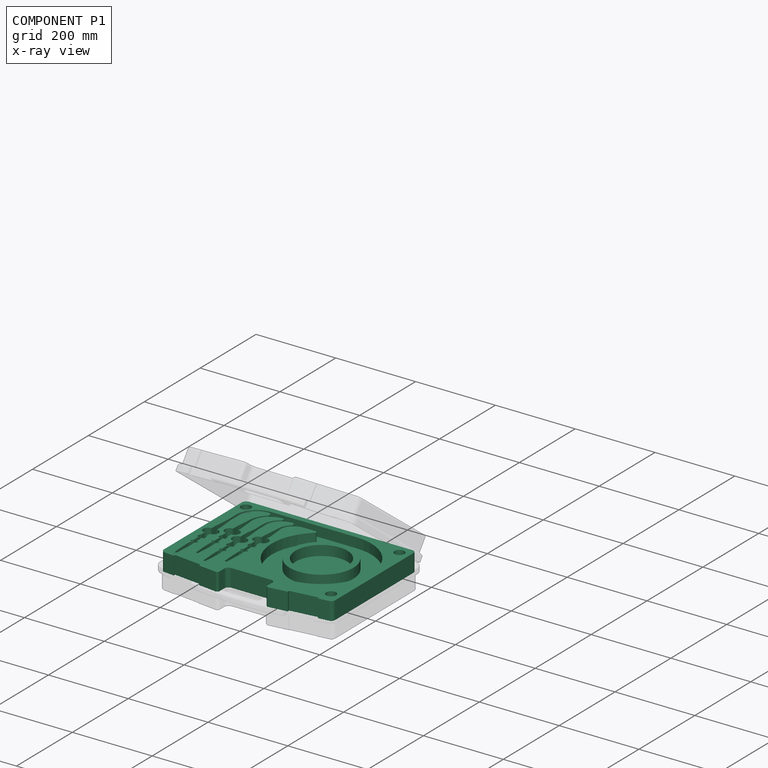
[diagram: component P1 — x-ray view]
COMPONENT P1 — recipe-attached (CADFS 00187194, mesh-verified: the recipe's output STEP matches this component's geometry to below the mesh-comparison resolution (tessellation chordal tolerance ~0.805 mm)).
Held by: SLIDER mate "top plate" to P2.
Construction recipe (FeatureScript — the CAD program that rebuilds this solid; sketch coordinates are in the units given by the * unit suffixes, e.g. mm):

FeatureScript 1540;
import(path : "onshape/std/geometry.fs", version : "1540.0");
import(path : "onshape/std/common.fs", version : "1540.0");
const mm = millimeter;
const VERTEX = EntityType.VERTEX;
const EDGE = EntityType.EDGE;
const FACE = EntityType.FACE;
const BODY = EntityType.BODY;
function v(x, y){return vector(x, y);}
function OD(order){return orderDisambiguation(order);}
function OSD(set){return originalSetDisambiguation(set);}
function TD(topology){return topologyDisambiguation(topology);}
function TDD(query){return trueDependencyDisambiguation(query);}
function sQuery(a, b, c) {return sketchEntityQuery(a, b, c);}

annotation { "Feature Type Name" : "Feature", "Feature Type Description" : "" }
export const myFeature = defineFeature(function(context is Context, id is Id, definition is map)
    precondition{}
    {
        {
            var Q0;
            Q0=qCreatedBy(makeId("Top.planeOp"),FACE);
            var sketch = newSketch(context, id + "F0", { "sketchPlane" : qUnion([Q0])});
            skLineSegment(sketch, "E0.bottom", {"start": v(10, 0) * mm, "end": v(420, 0) * mm});
            skLineSegment(sketch, "E1.top", {"start": v(165, 285) * mm, "end": v(265, 285) * mm});
            skLineSegment(sketch, "E1.left", {"start": v(155, 313.35) * mm, "end": v(155, 295) * mm});
            skLineSegment(sketch, "E1.right", {"start": v(275, 313.35) * mm, "end": v(275, 295) * mm});
            skLineSegment(sketch, "E2", {"start": v(0, 10) * mm, "end": v(0, 291.15) * mm});
            skLineSegment(sketch, "E3", {"start": v(430, 10) * mm, "end": v(430, 291.15) * mm});
            skLineSegment(sketch, "E4", {"start": v(33.9, 304.16) * mm, "end": v(34.51, 299.2) * mm});
            skLineSegment(sketch, "E5", {"start": v(34.51, 299.2) * mm, "end": v(104, 307.71) * mm});
            skLineSegment(sketch, "E6", {"start": v(104, 307.71) * mm, "end": v(103.39, 312.67) * mm});
            skLineSegment(sketch, "E7", {"start": v(326.61, 312.67) * mm, "end": v(326, 307.71) * mm});
            skLineSegment(sketch, "E8", {"start": v(326, 307.71) * mm, "end": v(395.49, 299.2) * mm});
            skLineSegment(sketch, "E9", {"start": v(395.49, 299.2) * mm, "end": v(396.1, 304.16) * mm});
            skLineSegment(sketch, "E10", {"start": v(396.1, 304.16) * mm, "end": v(421.22, 301.08) * mm});
            skLineSegment(sketch, "E11", {"start": v(326.61, 312.67) * mm, "end": v(280.6, 318.31) * mm});
            skLineSegment(sketch, "E12", {"start": v(103.39, 312.67) * mm, "end": v(149.4, 318.31) * mm});
            skLineSegment(sketch, "E13", {"start": v(8.78, 301.08) * mm, "end": v(33.9, 304.16) * mm});
            skPoint(sketch, "E14.visualSharp", {"position": v(155, 285) * mm});
            skArc(sketch, "E14.filletArc", {"start": v(155, 295) * mm, "mid": v(157.93, 287.93) * mm, "end": v(165, 285) * mm});
            skPoint(sketch, "E15.visualSharp", {"position": v(275, 285) * mm});
            skArc(sketch, "E15.filletArc", {"start": v(265, 285) * mm, "mid": v(272.07, 287.93) * mm, "end": v(275, 295) * mm});
            skPoint(sketch, "E16.visualSharp", {"position": v(430, 300) * mm});
            skArc(sketch, "E16.filletArc", {"start": v(430, 291.15) * mm, "mid": v(427.49, 297.78) * mm, "end": v(421.22, 301.08) * mm});
            skPoint(sketch, "E17.visualSharp", {"position": v(0, 300) * mm});
            skArc(sketch, "E17.filletArc", {"start": v(8.78, 301.08) * mm, "mid": v(2.51, 297.78) * mm, "end": v(0, 291.15) * mm});
            skPoint(sketch, "E18.visualSharp", {"position": v(0, 0) * mm});
            skArc(sketch, "E18.filletArc", {"start": v(0, 10) * mm, "mid": v(2.93, 2.93) * mm, "end": v(10, 0) * mm});
            skPoint(sketch, "E19.visualSharp", {"position": v(430, 0) * mm});
            skArc(sketch, "E19.filletArc", {"start": v(420, 0) * mm, "mid": v(427.07, 2.93) * mm, "end": v(430, 10) * mm});
            skPoint(sketch, "E20.visualSharp", {"position": v(155, 319) * mm});
            skArc(sketch, "E20.filletArc", {"start": v(155, 313.35) * mm, "mid": v(153.31, 317.1) * mm, "end": v(149.4, 318.31) * mm});
            skPoint(sketch, "E21.visualSharp", {"position": v(275, 319) * mm});
            skArc(sketch, "E21.filletArc", {"start": v(280.6, 318.31) * mm, "mid": v(276.69, 317.1) * mm, "end": v(275, 313.35) * mm});
            skLineSegment(sketch, "E22.bottom", {"start": v(286.5, 112) * mm, "end": v(286.5, 126) * mm});
            skLineSegment(sketch, "E22.top", {"start": v(299.5, 112) * mm, "end": v(299.5, 126) * mm});
            skLineSegment(sketch, "E23", {"start": v(293, 75) * mm, "end": v(293, 265) * mm, "construction": true});
            skLineSegment(sketch, "E24", {"start": v(296, 75) * mm, "end": v(299.5, 112) * mm});
            skLineSegment(sketch, "E25", {"start": v(290, 75) * mm, "end": v(286.5, 112) * mm});
            skLineSegment(sketch, "E26.bottom", {"start": v(284, 166.5) * mm, "end": v(284, 176) * mm});
            skLineSegment(sketch, "E26.top", {"start": v(302, 166.5) * mm, "end": v(302, 176) * mm});
            skLineSegment(sketch, "E26.left", {"start": v(285.5, 165) * mm, "end": v(286.5, 165) * mm});
            skLineSegment(sketch, "E26.right", {"start": v(284, 176) * mm, "end": v(289, 176) * mm});
            skPoint(sketch, "E27.visualSharp", {"position": v(284, 165) * mm});
            skArc(sketch, "E27.filletArc", {"start": v(284, 166.5) * mm, "mid": v(284.44, 165.44) * mm, "end": v(285.5, 165) * mm});
            skPoint(sketch, "E28.visualSharp", {"position": v(302, 165) * mm});
            skArc(sketch, "E28.filletArc", {"start": v(300.5, 165) * mm, "mid": v(301.56, 165.44) * mm, "end": v(302, 166.5) * mm});
            skLineSegment(sketch, "E29.trimOffspring", {"start": v(299.5, 165) * mm, "end": v(300.5, 165) * mm});
            skLineSegment(sketch, "E30.bottom", {"start": v(289, 176) * mm, "end": v(289, 195.72) * mm});
            skLineSegment(sketch, "E30.top", {"start": v(297, 176) * mm, "end": v(297, 195.72) * mm});
            skLineSegment(sketch, "E31.trimOffspring", {"start": v(297, 176) * mm, "end": v(302, 176) * mm});
            skLineSegment(sketch, "E32.left", {"start": v(286.08, 196.22) * mm, "end": v(289, 195.72) * mm});
            skLineSegment(sketch, "E33.trimOffspring", {"start": v(297, 195.72) * mm, "end": v(299.92, 196.22) * mm});
            skLineSegment(sketch, "E34.bottom", {"start": v(288, 209) * mm, "end": v(288, 228) * mm});
            skLineSegment(sketch, "E34.top", {"start": v(298, 209) * mm, "end": v(298, 228) * mm});
            skArc(sketch, "E35", {"start": v(285.55, 201) * mm, "mid": v(288.67, 204.42) * mm, "end": v(288, 209) * mm});
            skArc(sketch, "E36", {"start": v(298, 209) * mm, "mid": v(297.33, 204.42) * mm, "end": v(300.45, 201) * mm});
            skArc(sketch, "E37", {"start": v(285.55, 201) * mm, "mid": v(284.02, 198.41) * mm, "end": v(286.08, 196.22) * mm});
            skArc(sketch, "E38", {"start": v(299.92, 196.22) * mm, "mid": v(301.98, 198.41) * mm, "end": v(300.45, 201) * mm});
            skLineSegment(sketch, "E39", {"start": v(298, 228) * mm, "end": v(295.5, 265) * mm});
            skLineSegment(sketch, "E40", {"start": v(295.5, 265) * mm, "end": v(290.5, 265) * mm});
            skLineSegment(sketch, "E41", {"start": v(290.5, 265) * mm, "end": v(288, 228) * mm});
            skArc(sketch, "E42", {"start": v(286.5, 151) * mm, "mid": v(274, 138.5) * mm, "end": v(286.5, 126) * mm});
            skLineSegment(sketch, "E43.trimOffspring", {"start": v(286.5, 151) * mm, "end": v(286.5, 165) * mm});
            skArc(sketch, "E44", {"start": v(299.5, 126) * mm, "mid": v(312, 138.5) * mm, "end": v(299.5, 151) * mm});
            skLineSegment(sketch, "E45.trimOffspring", {"start": v(299.5, 151) * mm, "end": v(299.5, 165) * mm});
            skArc(sketch, "E46", {"start": v(222.4, 46) * mm, "mid": v(95.98, 257) * mm, "end": v(140, 15) * mm});
            skCircle(sketch, "E47", {"center": v(140, 140) * mm, "radius": 80 * mm});
            skCircle(sketch, "E48", {"center": v(140, 140) * mm, "radius": 65 * mm});
            skLineSegment(sketch, "E49", {"start": v(140, 15) * mm, "end": v(355.2, 15) * mm});
            skLineSegment(sketch, "E50", {"start": v(405.2, 65) * mm, "end": v(405.2, 98) * mm});
            skArc(sketch, "E51.filletArc", {"start": v(355.2, 15) * mm, "mid": v(390.56, 29.64) * mm, "end": v(405.2, 65) * mm});
            skLineSegment(sketch, "E52", {"start": v(368, 75) * mm, "end": v(368, 73) * mm});
            skArc(sketch, "E53.filletArc", {"start": v(350.32, 33.94) * mm, "mid": v(363.38, 51.56) * mm, "end": v(368, 73) * mm});
            skLineSegment(sketch, "E54", {"start": v(333.2, 98) * mm, "end": v(333.2, 73) * mm});
            skArc(sketch, "E55.filletArc", {"start": v(313.43, 35.21) * mm, "mid": v(327.96, 51.68) * mm, "end": v(333.2, 73) * mm});
            skLineSegment(sketch, "E56", {"start": v(296, 75) * mm, "end": v(296, 73) * mm});
            skArc(sketch, "E57.filletArc", {"start": v(283.08, 43.56) * mm, "mid": v(292.63, 56.93) * mm, "end": v(296, 73) * mm});
            skLineSegment(sketch, "E58", {"start": v(399.2, 65) * mm, "end": v(399.2, 98) * mm});
            skArc(sketch, "E59.filletArc", {"start": v(355.2, 21) * mm, "mid": v(386.31, 33.89) * mm, "end": v(399.2, 65) * mm});
            skLineSegment(sketch, "E60", {"start": v(362, 73) * mm, "end": v(362, 75) * mm});
            skArc(sketch, "E61.filletArc", {"start": v(316, 27) * mm, "mid": v(348.53, 40.47) * mm, "end": v(362, 73) * mm});
            skLineSegment(sketch, "E62", {"start": v(327.2, 73) * mm, "end": v(327.2, 98) * mm});
            skArc(sketch, "E63.filletArc", {"start": v(287.2, 33) * mm, "mid": v(315.48, 44.72) * mm, "end": v(327.2, 73) * mm});
            skLineSegment(sketch, "E64", {"start": v(225.04, 39) * mm, "end": v(256, 39) * mm});
            skLineSegment(sketch, "E65", {"start": v(290, 73) * mm, "end": v(290, 75) * mm});
            skArc(sketch, "E66", {"start": v(287.2, 33) * mm, "mid": v(281.53, 36.87) * mm, "end": v(283.08, 43.56) * mm});
            skArc(sketch, "E67", {"start": v(316, 27) * mm, "mid": v(311.7, 30.16) * mm, "end": v(313.43, 35.21) * mm});
            skArc(sketch, "E68", {"start": v(355.2, 21) * mm, "mid": v(348.29, 25.78) * mm, "end": v(350.32, 33.94) * mm});
            skArc(sketch, "E69", {"start": v(222.4, 46) * mm, "mid": v(221.3, 41.6) * mm, "end": v(225.04, 39) * mm});
            skArc(sketch, "E70", {"start": v(290, 73) * mm, "mid": v(280.04, 48.96) * mm, "end": v(256, 39) * mm});
            skLineSegment(sketch, "E71.0.1.0", {"start": v(333.2, 98) * mm, "end": v(336.7, 135) * mm});
            skLineSegment(sketch, "E71.0.1.1", {"start": v(336.7, 174) * mm, "end": v(336.7, 188) * mm});
            skPoint(sketch, "E71.0.1.2", {"position": v(321.2, 188) * mm});
            skLineSegment(sketch, "E71.0.1.3", {"start": v(326.2, 199) * mm, "end": v(326.2, 218.72) * mm});
            skLineSegment(sketch, "E71.0.1.4", {"start": v(330.2, 98) * mm, "end": v(330.2, 288) * mm, "construction": true});
            skLineSegment(sketch, "E71.0.1.5", {"start": v(323.7, 174) * mm, "end": v(323.7, 188) * mm});
            skLineSegment(sketch, "E71.0.1.6", {"start": v(325.2, 232) * mm, "end": v(325.2, 251) * mm});
            skLineSegment(sketch, "E71.0.1.7", {"start": v(327.7, 288) * mm, "end": v(325.2, 251) * mm});
            skLineSegment(sketch, "E71.0.1.8", {"start": v(335.2, 232) * mm, "end": v(335.2, 251) * mm});
            skLineSegment(sketch, "E71.0.1.9", {"start": v(327.2, 98) * mm, "end": v(323.7, 135) * mm});
            skLineSegment(sketch, "E71.0.1.10", {"start": v(323.7, 135) * mm, "end": v(323.7, 149) * mm});
            skArc(sketch, "E71.0.1.11", {"start": v(336.7, 149) * mm, "mid": v(349.2, 161.5) * mm, "end": v(336.7, 174) * mm});
            skPoint(sketch, "E71.0.1.12", {"position": v(339.2, 188) * mm});
            skLineSegment(sketch, "E71.0.1.13", {"start": v(334.2, 199) * mm, "end": v(334.2, 218.72) * mm});
            skLineSegment(sketch, "E71.0.1.14", {"start": v(335.2, 251) * mm, "end": v(332.7, 288) * mm});
            skArc(sketch, "E71.0.1.15", {"start": v(323.7, 174) * mm, "mid": v(311.2, 161.5) * mm, "end": v(323.7, 149) * mm});
            skLineSegment(sketch, "E71.0.1.16", {"start": v(336.7, 135) * mm, "end": v(336.7, 149) * mm});
            skArc(sketch, "E71.0.1.17", {"start": v(322.75, 224) * mm, "mid": v(325.87, 227.42) * mm, "end": v(325.2, 232) * mm});
            skLineSegment(sketch, "E71.0.1.18", {"start": v(321.2, 189.5) * mm, "end": v(321.2, 199) * mm});
            skLineSegment(sketch, "E71.0.1.19", {"start": v(339.2, 189.5) * mm, "end": v(339.2, 199) * mm});
            skArc(sketch, "E71.0.1.20", {"start": v(322.75, 224) * mm, "mid": v(321.22, 221.41) * mm, "end": v(323.28, 219.22) * mm});
            skLineSegment(sketch, "E71.0.1.21", {"start": v(334.2, 218.72) * mm, "end": v(337.12, 219.22) * mm});
            skArc(sketch, "E71.0.1.22", {"start": v(337.12, 219.22) * mm, "mid": v(339.18, 221.41) * mm, "end": v(337.65, 224) * mm});
            skArc(sketch, "E71.0.1.23", {"start": v(335.2, 232) * mm, "mid": v(334.53, 227.42) * mm, "end": v(337.65, 224) * mm});
            skLineSegment(sketch, "E71.0.1.24", {"start": v(321.2, 199) * mm, "end": v(326.2, 199) * mm});
            skLineSegment(sketch, "E71.0.1.25", {"start": v(323.28, 219.22) * mm, "end": v(326.2, 218.72) * mm});
            skLineSegment(sketch, "E71.0.1.26", {"start": v(334.2, 199) * mm, "end": v(339.2, 199) * mm});
            skLineSegment(sketch, "E71.0.1.27", {"start": v(336.7, 188) * mm, "end": v(337.7, 188) * mm});
            skArc(sketch, "E71.0.1.28", {"start": v(321.2, 189.5) * mm, "mid": v(321.64, 188.44) * mm, "end": v(322.7, 188) * mm});
            skLineSegment(sketch, "E71.0.1.29", {"start": v(332.7, 288) * mm, "end": v(327.7, 288) * mm});
            skArc(sketch, "E71.0.1.30", {"start": v(337.7, 188) * mm, "mid": v(338.76, 188.44) * mm, "end": v(339.2, 189.5) * mm});
            skLineSegment(sketch, "E71.0.1.31", {"start": v(322.7, 188) * mm, "end": v(323.7, 188) * mm});
            skLineSegment(sketch, "E71.1.0.0", {"start": v(368, 75) * mm, "end": v(371.5, 112) * mm});
            skLineSegment(sketch, "E71.1.0.1", {"start": v(371.5, 151) * mm, "end": v(371.5, 165) * mm});
            skPoint(sketch, "E71.1.0.2", {"position": v(356, 165) * mm});
            skLineSegment(sketch, "E71.1.0.3", {"start": v(361, 176) * mm, "end": v(361, 195.72) * mm});
            skLineSegment(sketch, "E71.1.0.4", {"start": v(365, 75) * mm, "end": v(365, 265) * mm, "construction": true});
            skLineSegment(sketch, "E71.1.0.5", {"start": v(358.5, 151) * mm, "end": v(358.5, 165) * mm});
            skLineSegment(sketch, "E71.1.0.6", {"start": v(360, 209) * mm, "end": v(360, 228) * mm});
            skLineSegment(sketch, "E71.1.0.7", {"start": v(362.5, 265) * mm, "end": v(360, 228) * mm});
            skLineSegment(sketch, "E71.1.0.8", {"start": v(370, 209) * mm, "end": v(370, 228) * mm});
            skLineSegment(sketch, "E71.1.0.9", {"start": v(362, 75) * mm, "end": v(358.5, 112) * mm});
            skLineSegment(sketch, "E71.1.0.10", {"start": v(358.5, 112) * mm, "end": v(358.5, 126) * mm});
            skArc(sketch, "E71.1.0.11", {"start": v(371.5, 126) * mm, "mid": v(384, 138.5) * mm, "end": v(371.5, 151) * mm});
            skPoint(sketch, "E71.1.0.12", {"position": v(374, 165) * mm});
            skLineSegment(sketch, "E71.1.0.13", {"start": v(369, 176) * mm, "end": v(369, 195.72) * mm});
            skLineSegment(sketch, "E71.1.0.14", {"start": v(370, 228) * mm, "end": v(367.5, 265) * mm});
            skArc(sketch, "E71.1.0.15", {"start": v(358.5, 151) * mm, "mid": v(346, 138.5) * mm, "end": v(358.5, 126) * mm});
            skLineSegment(sketch, "E71.1.0.16", {"start": v(371.5, 112) * mm, "end": v(371.5, 126) * mm});
            skArc(sketch, "E71.1.0.17", {"start": v(357.55, 201) * mm, "mid": v(360.67, 204.42) * mm, "end": v(360, 209) * mm});
            skLineSegment(sketch, "E71.1.0.18", {"start": v(356, 166.5) * mm, "end": v(356, 176) * mm});
            skLineSegment(sketch, "E71.1.0.19", {"start": v(374, 166.5) * mm, "end": v(374, 176) * mm});
            skArc(sketch, "E71.1.0.20", {"start": v(357.55, 201) * mm, "mid": v(356.02, 198.41) * mm, "end": v(358.08, 196.22) * mm});
            skLineSegment(sketch, "E71.1.0.21", {"start": v(369, 195.72) * mm, "end": v(371.92, 196.22) * mm});
            skArc(sketch, "E71.1.0.22", {"start": v(371.92, 196.22) * mm, "mid": v(373.98, 198.41) * mm, "end": v(372.45, 201) * mm});
            skArc(sketch, "E71.1.0.23", {"start": v(370, 209) * mm, "mid": v(369.33, 204.42) * mm, "end": v(372.45, 201) * mm});
            skLineSegment(sketch, "E71.1.0.24", {"start": v(356, 176) * mm, "end": v(361, 176) * mm});
            skLineSegment(sketch, "E71.1.0.25", {"start": v(358.08, 196.22) * mm, "end": v(361, 195.72) * mm});
            skLineSegment(sketch, "E71.1.0.26", {"start": v(369, 176) * mm, "end": v(374, 176) * mm});
            skLineSegment(sketch, "E71.1.0.27", {"start": v(371.5, 165) * mm, "end": v(372.5, 165) * mm});
            skArc(sketch, "E71.1.0.28", {"start": v(356, 166.5) * mm, "mid": v(356.44, 165.44) * mm, "end": v(357.5, 165) * mm});
            skLineSegment(sketch, "E71.1.0.29", {"start": v(367.5, 265) * mm, "end": v(362.5, 265) * mm});
            skArc(sketch, "E71.1.0.30", {"start": v(372.5, 165) * mm, "mid": v(373.56, 165.44) * mm, "end": v(374, 166.5) * mm});
            skLineSegment(sketch, "E71.1.0.31", {"start": v(357.5, 165) * mm, "end": v(358.5, 165) * mm});
            skLineSegment(sketch, "E71.1.1.0", {"start": v(405.2, 98) * mm, "end": v(408.7, 135) * mm});
            skLineSegment(sketch, "E71.1.1.1", {"start": v(408.7, 174) * mm, "end": v(408.7, 188) * mm});
            skPoint(sketch, "E71.1.1.2", {"position": v(393.2, 188) * mm});
            skLineSegment(sketch, "E71.1.1.3", {"start": v(398.2, 199) * mm, "end": v(398.2, 218.72) * mm});
            skLineSegment(sketch, "E71.1.1.4", {"start": v(402.2, 98) * mm, "end": v(402.2, 288) * mm, "construction": true});
            skLineSegment(sketch, "E71.1.1.5", {"start": v(395.7, 174) * mm, "end": v(395.7, 188) * mm});
            skLineSegment(sketch, "E71.1.1.6", {"start": v(397.2, 232) * mm, "end": v(397.2, 251) * mm});
            skLineSegment(sketch, "E71.1.1.7", {"start": v(399.7, 288) * mm, "end": v(397.2, 251) * mm});
            skLineSegment(sketch, "E71.1.1.8", {"start": v(407.2, 232) * mm, "end": v(407.2, 251) * mm});
            skLineSegment(sketch, "E71.1.1.9", {"start": v(399.2, 98) * mm, "end": v(395.7, 135) * mm});
            skLineSegment(sketch, "E71.1.1.10", {"start": v(395.7, 135) * mm, "end": v(395.7, 149) * mm});
            skArc(sketch, "E71.1.1.11", {"start": v(408.7, 149) * mm, "mid": v(421.2, 161.5) * mm, "end": v(408.7, 174) * mm});
            skPoint(sketch, "E71.1.1.12", {"position": v(411.2, 188) * mm});
            skLineSegment(sketch, "E71.1.1.13", {"start": v(406.2, 199) * mm, "end": v(406.2, 218.72) * mm});
            skLineSegment(sketch, "E71.1.1.14", {"start": v(407.2, 251) * mm, "end": v(404.7, 288) * mm});
            skArc(sketch, "E71.1.1.15", {"start": v(395.7, 174) * mm, "mid": v(383.2, 161.5) * mm, "end": v(395.7, 149) * mm});
            skLineSegment(sketch, "E71.1.1.16", {"start": v(408.7, 135) * mm, "end": v(408.7, 149) * mm});
            skArc(sketch, "E71.1.1.17", {"start": v(394.75, 224) * mm, "mid": v(397.87, 227.42) * mm, "end": v(397.2, 232) * mm});
            skLineSegment(sketch, "E71.1.1.18", {"start": v(393.2, 189.5) * mm, "end": v(393.2, 199) * mm});
            skLineSegment(sketch, "E71.1.1.19", {"start": v(411.2, 189.5) * mm, "end": v(411.2, 199) * mm});
            skArc(sketch, "E71.1.1.20", {"start": v(394.75, 224) * mm, "mid": v(393.22, 221.41) * mm, "end": v(395.28, 219.22) * mm});
            skLineSegment(sketch, "E71.1.1.21", {"start": v(406.2, 218.72) * mm, "end": v(409.12, 219.22) * mm});
            skArc(sketch, "E71.1.1.22", {"start": v(409.12, 219.22) * mm, "mid": v(411.18, 221.41) * mm, "end": v(409.65, 224) * mm});
            skArc(sketch, "E71.1.1.23", {"start": v(407.2, 232) * mm, "mid": v(406.53, 227.42) * mm, "end": v(409.65, 224) * mm});
            skLineSegment(sketch, "E71.1.1.24", {"start": v(393.2, 199) * mm, "end": v(398.2, 199) * mm});
            skLineSegment(sketch, "E71.1.1.25", {"start": v(395.28, 219.22) * mm, "end": v(398.2, 218.72) * mm});
            skLineSegment(sketch, "E71.1.1.26", {"start": v(406.2, 199) * mm, "end": v(411.2, 199) * mm});
            skLineSegment(sketch, "E71.1.1.27", {"start": v(408.7, 188) * mm, "end": v(409.7, 188) * mm});
            skArc(sketch, "E71.1.1.28", {"start": v(393.2, 189.5) * mm, "mid": v(393.64, 188.44) * mm, "end": v(394.7, 188) * mm});
            skLineSegment(sketch, "E71.1.1.29", {"start": v(404.7, 288) * mm, "end": v(399.7, 288) * mm});
            skArc(sketch, "E71.1.1.30", {"start": v(409.7, 188) * mm, "mid": v(410.76, 188.44) * mm, "end": v(411.2, 189.5) * mm});
            skLineSegment(sketch, "E71.1.1.31", {"start": v(394.7, 188) * mm, "end": v(395.7, 188) * mm});
            skLineSegment(sketch, "E71.direction1", {"start": v(290, 75) * mm, "end": v(362, 75) * mm, "construction": true});
            skLineSegment(sketch, "E71.direction2", {"start": v(290, 75) * mm, "end": v(327.2, 98) * mm, "construction": true});
            skCircle(sketch, "E72", {"center": v(25, 270) * mm, "radius": 12.5 * mm});
            skCircle(sketch, "E73", {"center": v(25, 25) * mm, "radius": 12.5 * mm});
            skCircle(sketch, "E74", {"center": v(410, 25) * mm, "radius": 12.5 * mm});
            skSolve(sketch);
        }
        {
            var Q0;
            Q0 = qSketchRegion(id + "F0", true);
            extrude(context, id + "F1", {"entities" : qUnion([Q0]), "depth" : 25 * mm});
        }
        {
            var Q0;
            Q0=makeQuery(id+"F0.imprint","IMPRINT",FACE,{"disambiguationData":[TD([[makeQuery(id+"F0.imprint","IMPRINT",EDGE,{"derivedFrom":sQuery(id+"F0.wireOp",EDGE,"E47")}),1.0]])]});
            extrude(context, id + "F2", {"entities" : qUnion([Q0]), "depth" : 25 * mm});
        }
        {
            var Q0;
            Q0=makeQuery(id+"F0.imprint","IMPRINT",FACE,{"disambiguationData":[TD([[makeQuery(id+"F0.imprint","IMPRINT",EDGE,{"derivedFrom":sQuery(id+"F0.wireOp",EDGE,"E0.bottom")}),1.0]])]});
            var Q1;
            Q1=makeQuery(id+"F0.imprint","IMPRINT",FACE,{"disambiguationData":[TD([[makeQuery(id+"F0.imprint","IMPRINT",EDGE,{"derivedFrom":sQuery(id+"F0.wireOp",EDGE,"E22.bottom")}),-1.0]])]});
            var Q2;
            Q2=makeQuery(id+"F0.imprint","IMPRINT",FACE,{"disambiguationData":[TD([[makeQuery(id+"F0.imprint","IMPRINT",EDGE,{"derivedFrom":sQuery(id+"F0.wireOp",EDGE,"E47")}),1.0]])]});
            var Q3;
            Q3=makeQuery(id+"F0.imprint","IMPRINT",FACE,{"disambiguationData":[TD([[makeQuery(id+"F0.imprint","IMPRINT",EDGE,{"derivedFrom":sQuery(id+"F0.wireOp",EDGE,"E48")}),1.0]])]});
            var Q4;
            Q4=makeQuery(id+"F0.imprint","IMPRINT",FACE,{"disambiguationData":[TD([[makeQuery(id+"F0.imprint","IMPRINT",EDGE,{"derivedFrom":sQuery(id+"F0.wireOp",EDGE,"E72")}),1.0]])]});
            var Q5;
            Q5=makeQuery(id+"F0.imprint","IMPRINT",FACE,{"disambiguationData":[TD([[makeQuery(id+"F0.imprint","IMPRINT",EDGE,{"derivedFrom":sQuery(id+"F0.wireOp",EDGE,"E73")}),1.0]])]});
            var Q6;
            Q6=makeQuery(id+"F0.imprint","IMPRINT",FACE,{"disambiguationData":[TD([[makeQuery(id+"F0.imprint","IMPRINT",EDGE,{"derivedFrom":sQuery(id+"F0.wireOp",EDGE,"E74")}),1.0]])]});
            extrude(context, id + "F3", {"entities" : qUnion([Q0, Q1, Q2, Q3, Q4, Q5, Q6]), "operationType" : NewBodyOperationType.ADD, "oppositeDirection" : true, "depth" : 20 * mm});
        }
    });
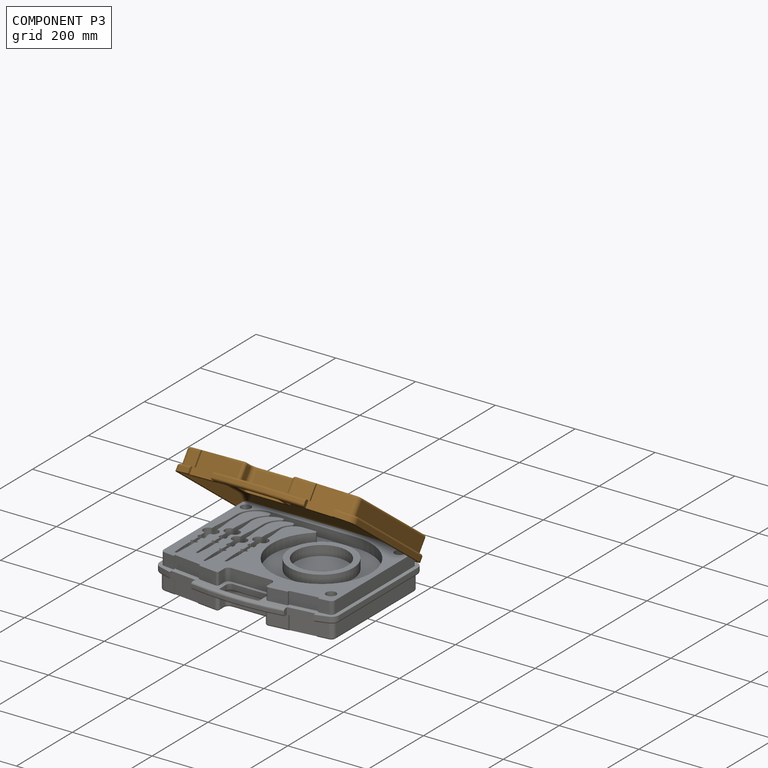
[diagram: component P3 — assembled]
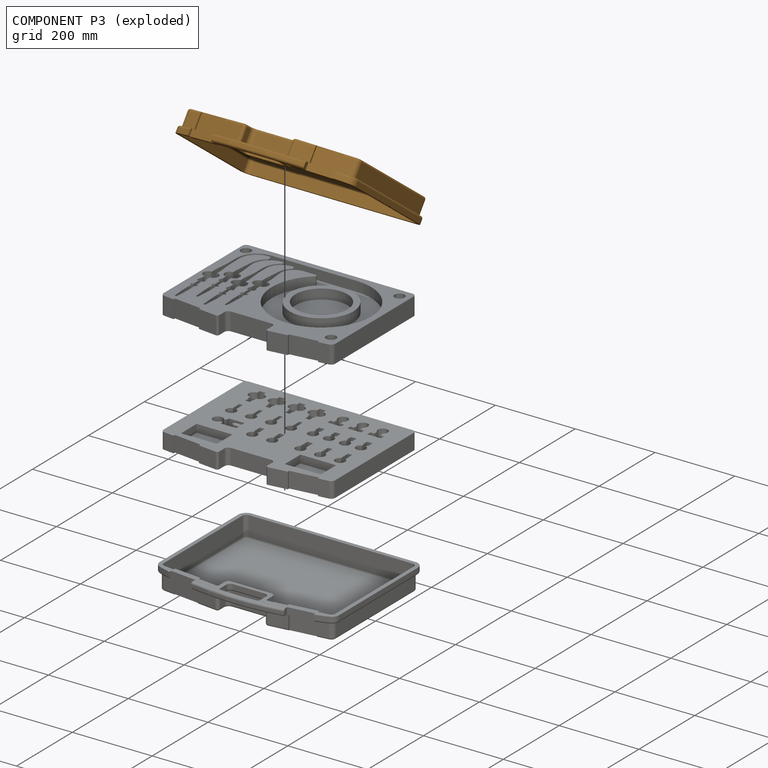
[diagram: component P3 — exploded]
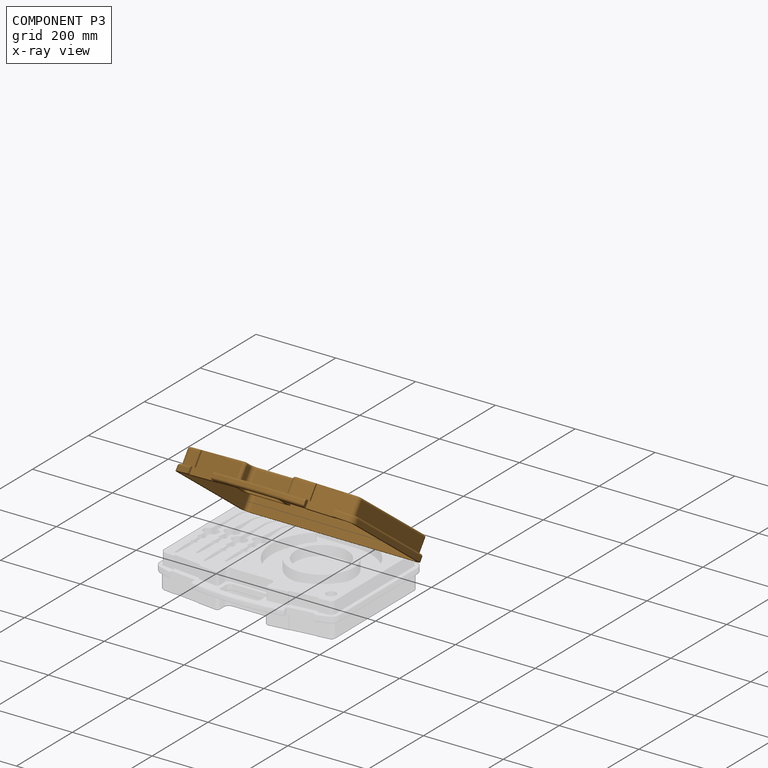
[diagram: component P3 — x-ray view]
COMPONENT P3 — geometry summary (no construction recipe available for this part):
  bounding box: 453.3 x 365.8 x 57.0 mm
  B-rep topology: 1 solid, 131 faces, 648 edges
  volume: 820835 mm^3 (9% of its bounding box)
  symmetry: mirror-symmetric across its x mid-plane
Held by: REVOLUTE mate "Revolute 1" to P2.
PROVENANCE & LICENSES
Assembly (occurrences, transforms, mates, per-part STEP geometry): AutoMate dataset, Zenodo record 7776208, CC0.
Construction recipes: CADFS (HuggingFace VladPyatov/CADFS, CC-BY-4.0, layered over the ABC dataset), FeatureScript reconstruction programs keyed by ABC model id.
Join: ABC meta listings map ABC model id -> Onshape documentId; within a shared document, parts are matched by geometric signature (bounding-box dims + volume at 0.1% relative tolerance, exact B-rep face/solid counts).
Verification: 2 of this assembly's 4 components carry a recipe attachment, and every attachment is mesh-verified: the CADFS STEP and the AutoMate member STEP were compared as meshes in their shared local frame (symmetric sampled-point-to-mesh distance); worst across the 2 attachments: below the mesh-comparison resolution (tessellation chordal tolerance ~0.805 mm) on a 537 mm part.
Renders: orthographic iso camera (az 35 / el 25); the floor grid conveys scale (grid pitch printed in each image; no ruler). In the exploded view each component is displaced by its stored offset vector: the offsets alone carry the explosion direction (mate normal/axis signs are not orientation cues and do not encode it), and separation distances are assigned per mate-chain, not proportionally to assembly-order depth.
